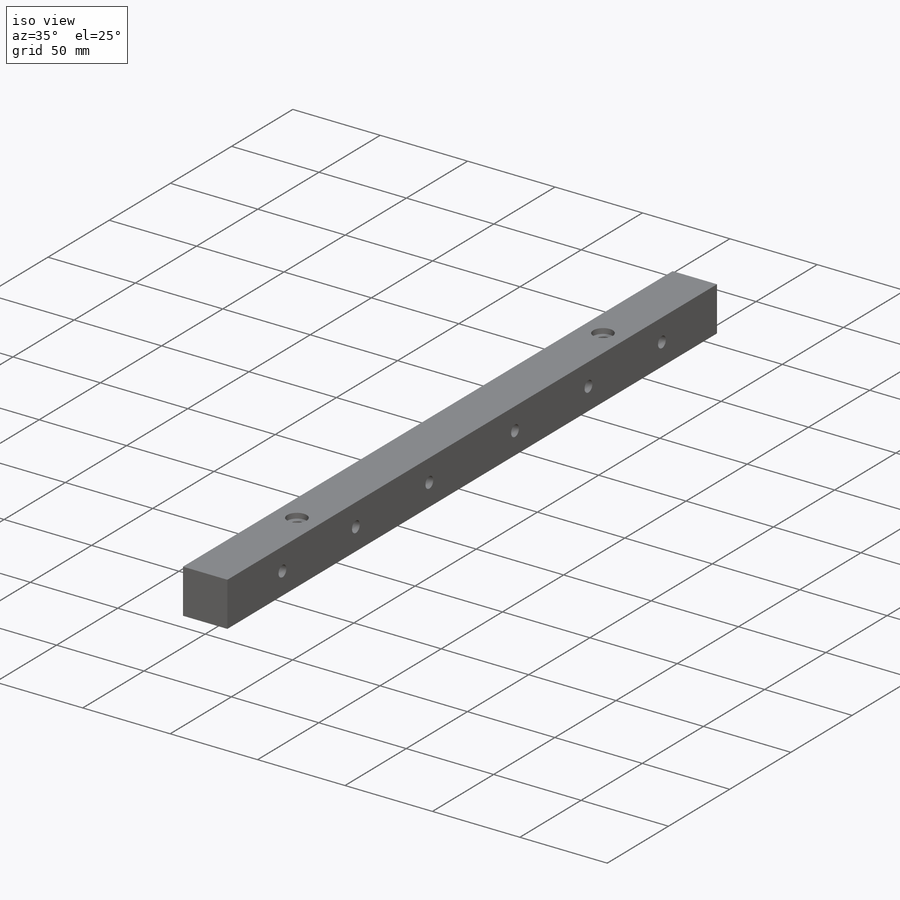
[diagram: iso view]
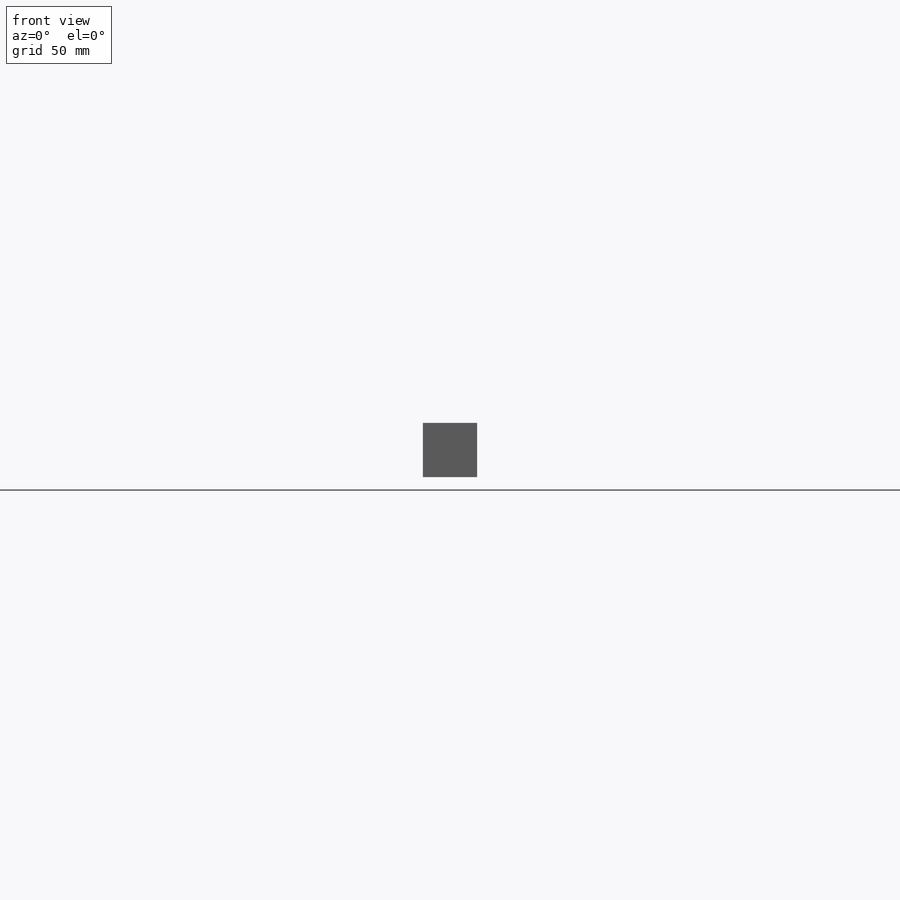
[diagram: front view]
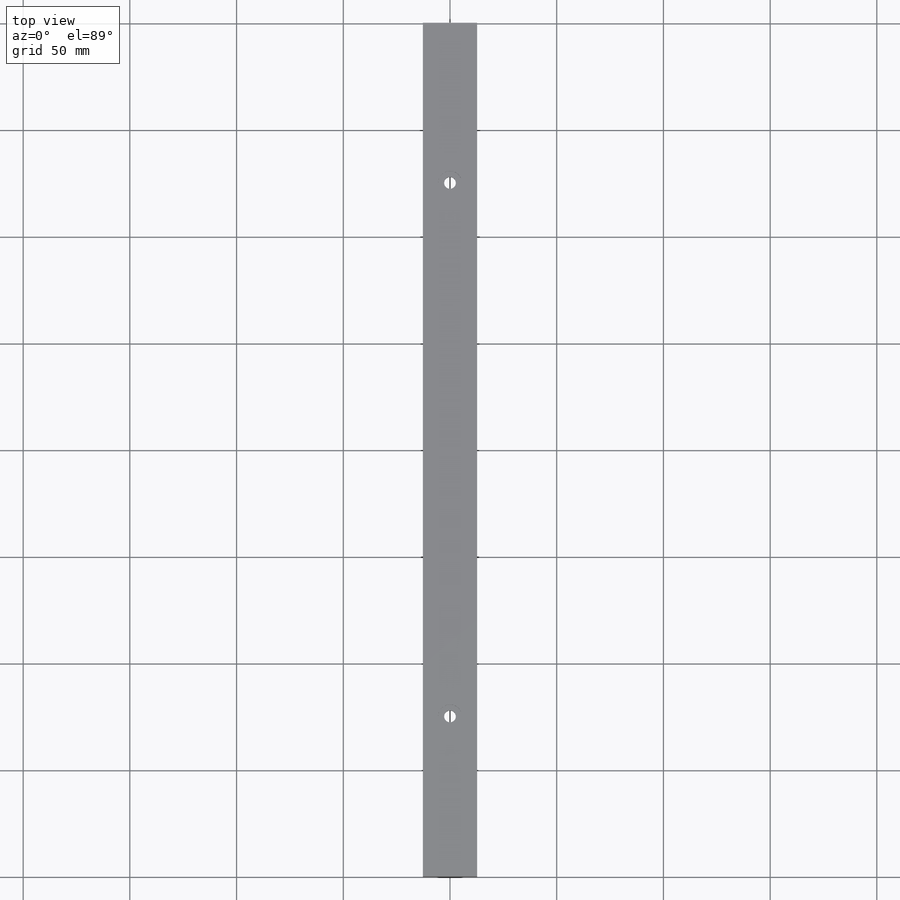
[diagram: top view]
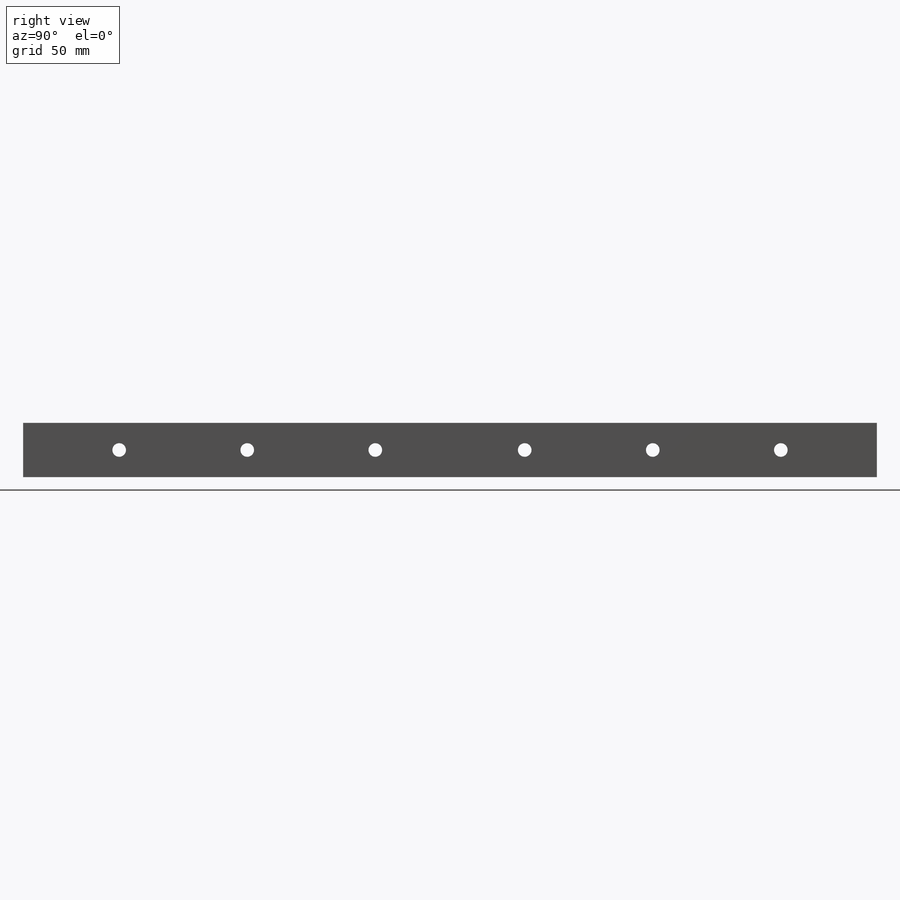
[diagram: right view]
SOLIDWORKS PART (.sldprt)
format: sldprt  version: not decoded by parser v0  size: 211,968 bytes
history: native  units: mm
features: sketch x4, cut_extrude x2, material x1, extrude x1, cut_revolve x1, mirror x1 (+16 scaffold rows collapsed)
feature tree (26):
  scaffold x16  (default folders/planes/origin — collapsed)
  material  "Delrin 2700 NC010, Low Viscosity Acetal Copolymer (SS)"
  sketch  "Sketch1"  dims[D1=25.4mm D2=25.4mm]
  extrude  "Boss-Extrude1"  Depth=200mm
  sketch  "Sketch5"
  cut_extrude  "Cut-Extrude1"  [1 undecoded]
  sketch  "Sketch6"  dims[D1=8.0mm]
  cut_extrude  "Cut-Extrude2"  Depth=3mm
  sketch  "Sketch7"  dims[c1.D1=12.0mm c1.D2=~7.208712mm c2.D2=60.0deg c2.D3=5.4mm c2.D4=3.0mm c2.D5=11.1125mm c2.D6=15.0mm]
  cut_revolve  "Cut-Revolve1"  Angle=360deg
  mirror  "Mirror1"
decode coverage: 6 of 9 modeling features carry decoded parameters
note: ~ marks probable driven/reference dimensions
note: 1 parameter value undecoded
note: suppression state not decoded; provenance and decode notes live in map.json
